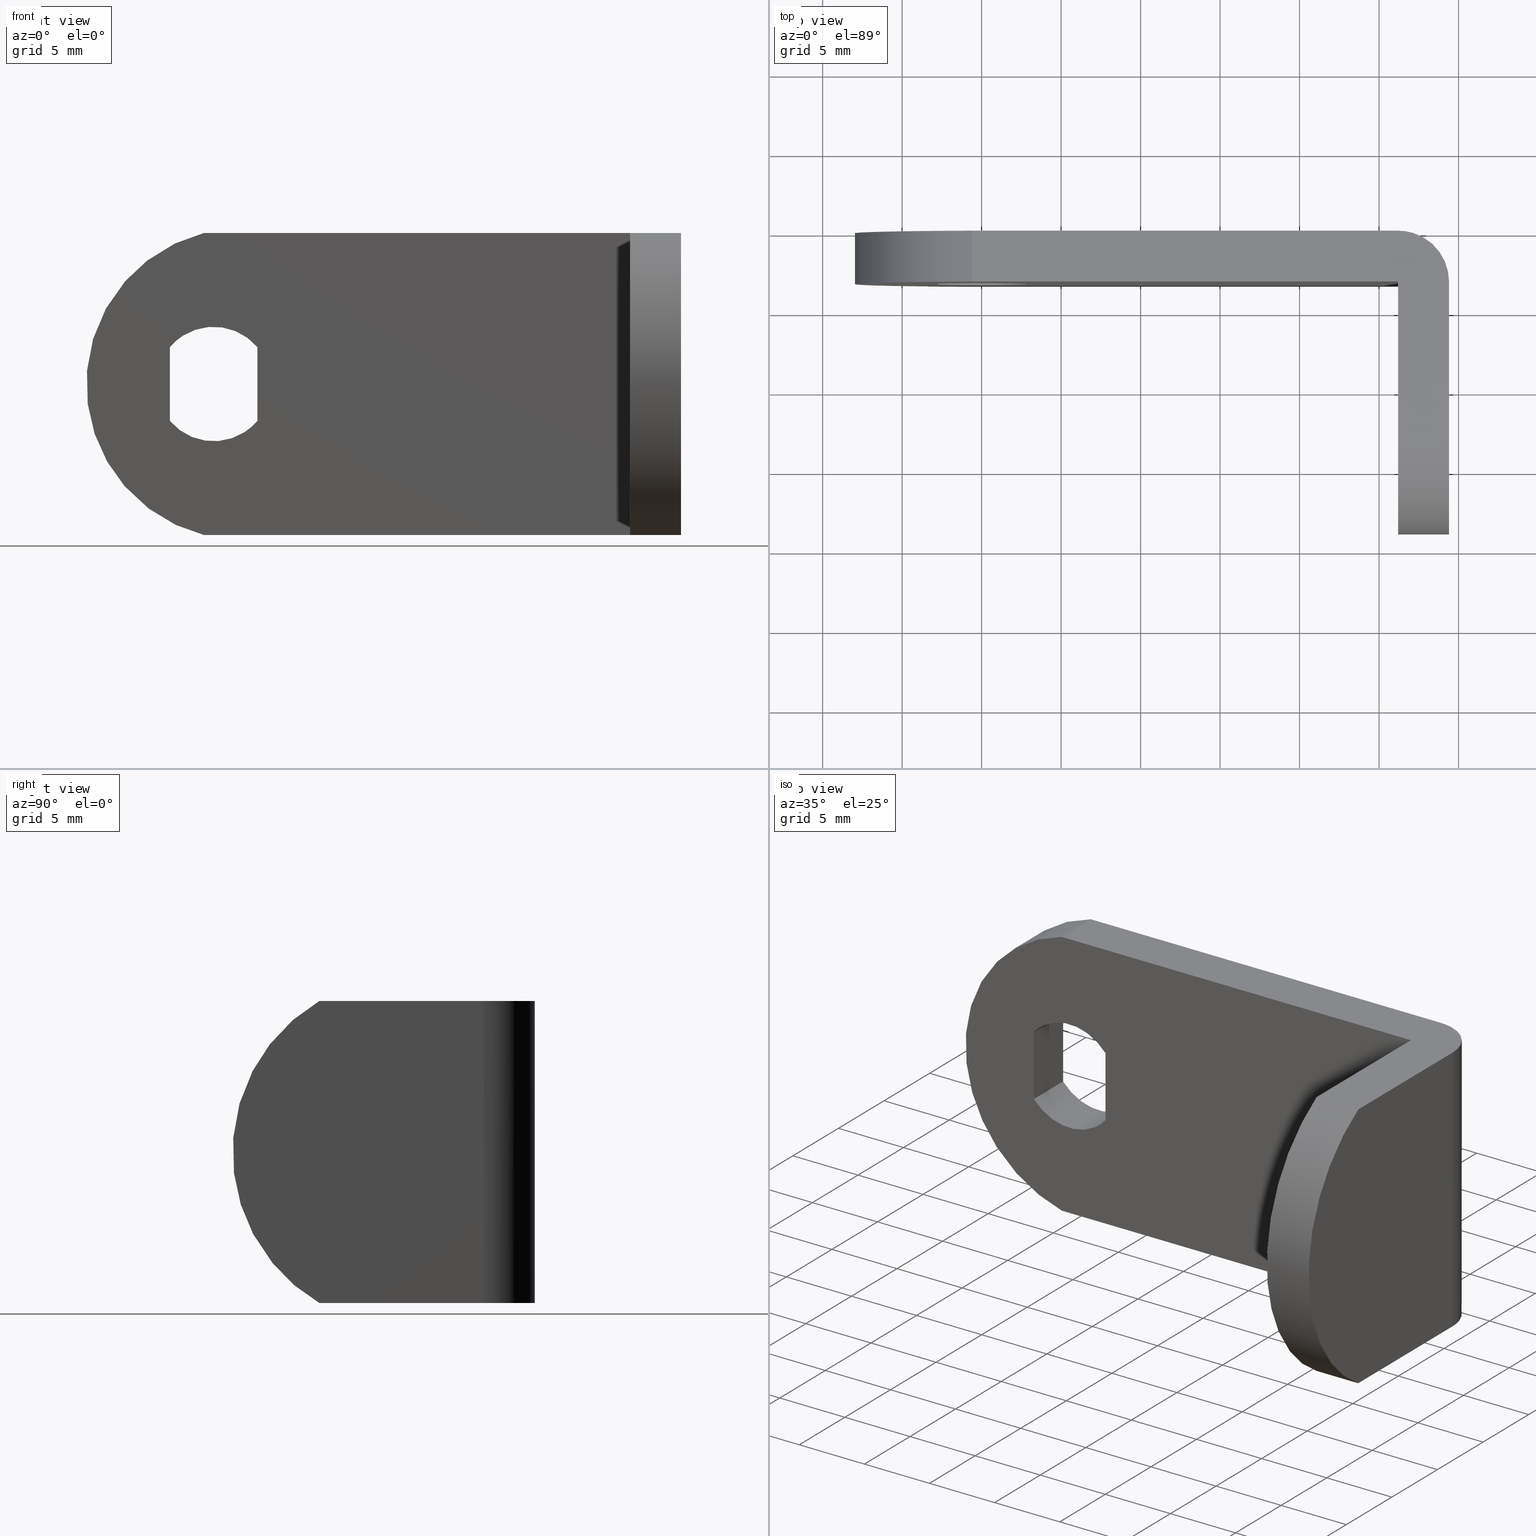
[diagram: canonical four-view strip — front | top / right | iso, engineering-drawing reading convention]
A machine part, canonical four-view strip (front | top / right | iso — engineering-drawing reading convention). The complete STEP part file that produces these views, byte-faithful:
ISO-10303-21;
HEADER;
/****************************************************************
 * Generated by software with PDE/Lib inside                    *
 * PDElib Version 4.4.1-0003, patched  Thursday August 19 11:58 *
 * International Technegroup Inc. (www.iti-oh.com)              *
 ****************************************************************/
FILE_DESCRIPTION((''),'2;1');
FILE_NAME('','2005-07-15T17:37:20',(''),(''),'','CADfix','');
FILE_SCHEMA(('AUTOMOTIVE_DESIGN'));
ENDSEC;
DATA;
#5=APPLICATION_CONTEXT('automotive design');
#6=APPLICATION_PROTOCOL_DEFINITION('Draft International Standard','automotive_design',1998,#5);
#7=PRODUCT_CONTEXT('None',#5,'mechanical');
#8=PRODUCT('cam','','None',(#7));
#9=PRODUCT_RELATED_PRODUCT_CATEGORY('part','description',(#8));
#10=PRODUCT_DEFINITION_FORMATION('None','None',#8);
#11=PRODUCT_DEFINITION_CONTEXT('part definition',#5,'design');
#12=PRODUCT_DEFINITION('None','None',#10,#11);
#18=(NAMED_UNIT(*)PLANE_ANGLE_UNIT()SI_UNIT($,.RADIAN.));
#19=DIMENSIONAL_EXPONENTS(0.0,0.0,0.0,0.0,0.0,0.0,0.0);
#20=PLANE_ANGLE_MEASURE_WITH_UNIT(PLANE_ANGLE_MEASURE(0.017453292500000),#18);
#24=(CONVERSION_BASED_UNIT('DEGREE',#20)NAMED_UNIT(#19)PLANE_ANGLE_UNIT());
#28=(NAMED_UNIT(*)SI_UNIT($,.STERADIAN.)SOLID_ANGLE_UNIT());
#32=(LENGTH_UNIT()NAMED_UNIT(*)SI_UNIT(.MILLI.,.METRE.));
#34=UNCERTAINTY_MEASURE_WITH_UNIT(LENGTH_MEASURE(0.001000000000000),#32,'DISTANCE_ACCURACY_VALUE','');
#36=(GEOMETRIC_REPRESENTATION_CONTEXT(3)GLOBAL_UNCERTAINTY_ASSIGNED_CONTEXT((#34))GLOBAL_UNIT_ASSIGNED_CONTEXT((#24,#28,#32))REPRESENTATION_CONTEXT('None','None'));
#37=AXIS2_PLACEMENT_3D('',#38,#39,#40);
#38=CARTESIAN_POINT('',(0.0,0.0,0.0));
#39=DIRECTION('',(0.0,0.0,1.0));
#40=DIRECTION('',(1.0,0.0,0.0));
#41=ADVANCED_BREP_SHAPE_REPRESENTATION('',(#37,#540),#36);
#42=PRODUCT_DEFINITION_SHAPE('','',#12);
#43=SHAPE_DEFINITION_REPRESENTATION(#42,#41);
#44=CARTESIAN_POINT('',(29.398903439921789,-3.283766234585195,9.975000000000001));
#45=CARTESIAN_POINT('',(29.398903439921789,-3.283766234585195,-9.986875000000000));
#46=CARTESIAN_POINT('',(29.491175215301187,0.239950703755023,9.975000000000001));
#47=CARTESIAN_POINT('',(29.491175215301187,0.239950703755023,-9.986875000000001));
#48=CARTESIAN_POINT('',(25.974976351309930,-0.007921624156109,9.975000000000003));
#49=CARTESIAN_POINT('',(25.974976351309930,-0.007921624156109,-9.986875000000000));
#57=(BOUNDED_SURFACE()B_SPLINE_SURFACE(1,2,((#44,#46,#48),(#45,#47,#49)),.UNSPECIFIED.,.F.,.F.,.U.)B_SPLINE_SURFACE_WITH_KNOTS((2,2),(3,3),(0.0,19.961874999999999),(0.0,5.667654789434264),.UNSPECIFIED.)GEOMETRIC_REPRESENTATION_ITEM()RATIONAL_B_SPLINE_SURFACE(((1.0,0.670944264382934,0.996392567056732),(1.0,0.670944264382934,0.996392567056732)))REPRESENTATION_ITEM('')SURFACE());
#58=CARTESIAN_POINT('',(26.199999999999999,0.0,-9.500000000000000));
#59=VERTEX_POINT('',#58);
#60=CARTESIAN_POINT('',(29.399999999999999,-3.200000000000000,-9.500000000000000));
#61=VERTEX_POINT('',#60);
#62=CARTESIAN_POINT('',(26.199999999999999,0.0,-9.500000000000000));
#63=CARTESIAN_POINT('',(29.399999999999999,-4.336809E-016,-9.500000000000000));
#64=CARTESIAN_POINT('',(29.399999999999999,-3.200000000000000,-9.500000000000000));
#72=(BOUNDED_CURVE()B_SPLINE_CURVE(2,(#62,#63,#64),.UNSPECIFIED.,.F.,.U.)CURVE()GEOMETRIC_REPRESENTATION_ITEM()QUASI_UNIFORM_CURVE()RATIONAL_B_SPLINE_CURVE((1.0,0.707106781186548,1.0))REPRESENTATION_ITEM(''));
#73=EDGE_CURVE('',#59,#61,#72,.T.);
#74=ORIENTED_EDGE('',*,*,#73,.F.);
#75=CARTESIAN_POINT('',(26.199999999999999,0.0,9.500000000000000));
#76=VERTEX_POINT('',#75);
#77=CARTESIAN_POINT('',(26.199999999999999,0.0,9.500000000000000));
#78=CARTESIAN_POINT('',(26.199999999999999,0.0,-9.500000000000000));
#79=QUASI_UNIFORM_CURVE('',1,(#77,#78),.UNSPECIFIED.,.F.,.U.);
#80=EDGE_CURVE('',#76,#59,#79,.T.);
#81=ORIENTED_EDGE('',*,*,#80,.F.);
#82=CARTESIAN_POINT('',(29.399999999999999,-3.200000000000000,9.500000000000000));
#83=VERTEX_POINT('',#82);
#84=CARTESIAN_POINT('',(29.399999999999999,-3.200000000000000,9.500000000000000));
#85=CARTESIAN_POINT('',(29.399999999999999,-4.336809E-016,9.500000000000000));
#86=CARTESIAN_POINT('',(26.199999999999999,0.0,9.500000000000000));
#94=(BOUNDED_CURVE()B_SPLINE_CURVE(2,(#84,#85,#86),.UNSPECIFIED.,.F.,.U.)CURVE()GEOMETRIC_REPRESENTATION_ITEM()QUASI_UNIFORM_CURVE()RATIONAL_B_SPLINE_CURVE((1.0,0.707106781186548,1.0))REPRESENTATION_ITEM(''));
#95=EDGE_CURVE('',#83,#76,#94,.T.);
#96=ORIENTED_EDGE('',*,*,#95,.F.);
#97=CARTESIAN_POINT('',(29.399999999999999,-3.200000000000000,-9.500000000000000));
#98=CARTESIAN_POINT('',(29.399999999999999,-3.200000000000000,9.500000000000000));
#99=QUASI_UNIFORM_CURVE('',1,(#97,#98),.UNSPECIFIED.,.F.,.U.);
#100=EDGE_CURVE('',#61,#83,#99,.T.);
#101=ORIENTED_EDGE('',*,*,#100,.F.);
#102=EDGE_LOOP('',(#74,#81,#96,#101));
#103=FACE_OUTER_BOUND('',#102,.T.);
#104=ADVANCED_FACE('',(#103),#57,.T.);
#105=CARTESIAN_POINT('',(26.199999999999999,-19.789209969376529,-10.449049963174311));
#106=CARTESIAN_POINT('',(26.199999999999999,-2.410789606834442,-10.449049963174311));
#107=CARTESIAN_POINT('',(26.199999999999999,-19.789209969376529,10.449050472794021));
#108=CARTESIAN_POINT('',(26.199999999999999,-2.410789606834442,10.449050472794021));
#109=B_SPLINE_SURFACE_WITH_KNOTS('',1,1,((#105,#107),(#106,#108)),.UNSPECIFIED.,.F.,.F.,.U.,(2,2),(2,2),(0.0,17.378420362542091),(0.0,20.898100435968342),.UNSPECIFIED.);
#110=CARTESIAN_POINT('',(26.199999999999999,-3.200000000000000,-9.500000000000000));
#111=VERTEX_POINT('',#110);
#112=CARTESIAN_POINT('',(26.199999999999999,-3.200000000000000,9.500000000000000));
#113=VERTEX_POINT('',#112);
#114=CARTESIAN_POINT('',(26.199999999999999,-3.200000000000000,-9.500000000000000));
#115=CARTESIAN_POINT('',(26.199999999999999,-3.200000000000000,9.500000000000000));
#116=QUASI_UNIFORM_CURVE('',1,(#114,#115),.UNSPECIFIED.,.F.,.U.);
#117=EDGE_CURVE('',#111,#113,#116,.T.);
#118=ORIENTED_EDGE('',*,*,#117,.F.);
#119=CARTESIAN_POINT('',(26.199999999999999,-13.545268253204620,-9.500000000000000));
#120=VERTEX_POINT('',#119);
#121=CARTESIAN_POINT('',(26.199999999999999,-13.545268253204620,-9.500000000000000));
#122=CARTESIAN_POINT('',(26.199999999999999,-3.200000000000000,-9.500000000000000));
#123=QUASI_UNIFORM_CURVE('',1,(#121,#122),.UNSPECIFIED.,.F.,.U.);
#124=EDGE_CURVE('',#120,#111,#123,.T.);
#125=ORIENTED_EDGE('',*,*,#124,.F.);
#126=CARTESIAN_POINT('',(26.199999999999999,-13.545268253204620,9.500000000000000));
#127=VERTEX_POINT('',#126);
#128=CARTESIAN_POINT('',(26.199999999999999,-13.545268253204640,9.500000000000039));
#129=CARTESIAN_POINT('',(26.200000000000003,-19.0,6.316005180499862));
#130=CARTESIAN_POINT('',(26.199999999999999,-19.0,-4.898425E-016));
#131=CARTESIAN_POINT('',(26.200000000000003,-19.0,-6.316005180499862));
#132=CARTESIAN_POINT('',(26.199999999999999,-13.545268253204640,-9.500000000000037));
#140=(BOUNDED_CURVE()B_SPLINE_CURVE(2,(#128,#129,#130,#131,#132),.UNSPECIFIED.,.F.,.U.)B_SPLINE_CURVE_WITH_KNOTS((3,2,3),(0.0,0.500000000000000,1.0),.UNSPECIFIED.)CURVE()GEOMETRIC_REPRESENTATION_ITEM()RATIONAL_B_SPLINE_CURVE((1.0,0.867212573636325,1.0,0.867212573636325,1.0))REPRESENTATION_ITEM(''));
#141=EDGE_CURVE('',#127,#120,#140,.T.);
#142=ORIENTED_EDGE('',*,*,#141,.F.);
#143=CARTESIAN_POINT('',(26.199999999999999,-3.200000000000000,9.500000000000000));
#144=CARTESIAN_POINT('',(26.199999999999999,-13.545268253204620,9.500000000000000));
#145=QUASI_UNIFORM_CURVE('',1,(#143,#144),.UNSPECIFIED.,.F.,.U.);
#146=EDGE_CURVE('',#113,#127,#145,.T.);
#147=ORIENTED_EDGE('',*,*,#146,.F.);
#148=EDGE_LOOP('',(#118,#125,#142,#147));
#149=FACE_OUTER_BOUND('',#148,.T.);
#150=ADVANCED_FACE('',(#149),#109,.F.);
#151=CARTESIAN_POINT('',(29.480000000000000,-13.202686858099559,9.691854799601472));
#152=CARTESIAN_POINT('',(26.117999999999999,-13.202686858099559,9.691854799601472));
#153=CARTESIAN_POINT('',(29.480000000000000,-32.224022905627912,-0.518993084958304));
#154=CARTESIAN_POINT('',(26.117999999999991,-32.224022905627912,-0.518993084958304));
#155=CARTESIAN_POINT('',(29.480000000000000,-12.782812632405211,-9.905791403179510));
#156=CARTESIAN_POINT('',(26.117999999999999,-12.782812632405211,-9.905791403179510));
#164=(BOUNDED_SURFACE()B_SPLINE_SURFACE(1,2,((#151,#153,#155),(#152,#154,#156)),.UNSPECIFIED.,.F.,.F.,.U.)B_SPLINE_SURFACE_WITH_KNOTS((2,2),(3,3),(0.0,3.362000000000008),(0.0,26.963234678157001),.UNSPECIFIED.)GEOMETRIC_REPRESENTATION_ITEM()RATIONAL_B_SPLINE_SURFACE(((1.0,0.453990499739547,1.0),(1.0,0.453990499739547,1.0)))REPRESENTATION_ITEM('')SURFACE());
#165=ORIENTED_EDGE('',*,*,#141,.T.);
#166=CARTESIAN_POINT('',(29.399999999999999,-13.545268253204620,-9.500000000000000));
#167=VERTEX_POINT('',#166);
#168=CARTESIAN_POINT('',(29.399999999999999,-13.545268253204620,-9.500000000000000));
#169=CARTESIAN_POINT('',(26.199999999999999,-13.545268253204620,-9.500000000000000));
#170=QUASI_UNIFORM_CURVE('',1,(#168,#169),.UNSPECIFIED.,.F.,.U.);
#171=EDGE_CURVE('',#167,#120,#170,.T.);
#172=ORIENTED_EDGE('',*,*,#171,.F.);
#173=CARTESIAN_POINT('',(29.399999999999999,-13.545268253204620,9.500000000000000));
#174=VERTEX_POINT('',#173);
#175=CARTESIAN_POINT('',(29.399999999999999,-13.545268253204640,9.500000000000039));
#176=CARTESIAN_POINT('',(29.400000000000002,-19.0,6.316005180499862));
#177=CARTESIAN_POINT('',(29.399999999999999,-19.0,-4.898425E-016));
#178=CARTESIAN_POINT('',(29.400000000000002,-19.0,-6.316005180499862));
#179=CARTESIAN_POINT('',(29.399999999999999,-13.545268253204640,-9.500000000000037));
#187=(BOUNDED_CURVE()B_SPLINE_CURVE(2,(#175,#176,#177,#178,#179),.UNSPECIFIED.,.F.,.U.)B_SPLINE_CURVE_WITH_KNOTS((3,2,3),(0.0,0.500000000000000,1.0),.UNSPECIFIED.)CURVE()GEOMETRIC_REPRESENTATION_ITEM()RATIONAL_B_SPLINE_CURVE((1.0,0.867212573636325,1.0,0.867212573636325,1.0))REPRESENTATION_ITEM(''));
#188=EDGE_CURVE('',#174,#167,#187,.T.);
#189=ORIENTED_EDGE('',*,*,#188,.F.);
#190=CARTESIAN_POINT('',(29.399999999999999,-13.545268253204620,9.500000000000000));
#191=CARTESIAN_POINT('',(26.199999999999999,-13.545268253204620,9.500000000000000));
#192=QUASI_UNIFORM_CURVE('',1,(#190,#191),.UNSPECIFIED.,.F.,.U.);
#193=EDGE_CURVE('',#174,#127,#192,.T.);
#194=ORIENTED_EDGE('',*,*,#193,.T.);
#195=EDGE_LOOP('',(#165,#172,#189,#194));
#196=FACE_OUTER_BOUND('',#195,.T.);
#197=ADVANCED_FACE('',(#196),#164,.T.);
#198=CARTESIAN_POINT('',(-9.708289933713765,0.0,10.449049963174311));
#199=CARTESIAN_POINT('',(27.908290851029260,0.0,10.449049963174311));
#200=CARTESIAN_POINT('',(-9.708289933713765,0.0,-10.449050472794021));
#201=CARTESIAN_POINT('',(27.908290851029260,0.0,-10.449050472794021));
#202=B_SPLINE_SURFACE_WITH_KNOTS('',1,1,((#198,#200),(#199,#201)),.UNSPECIFIED.,.F.,.F.,.U.,(2,2),(2,2),(0.0,37.616580784743029),(0.0,20.898100435968342),.UNSPECIFIED.);
#203=CARTESIAN_POINT('',(-0.606241883103202,0.0,9.500000000000000));
#204=VERTEX_POINT('',#203);
#205=CARTESIAN_POINT('',(26.199999999999999,0.0,9.500000000000000));
#206=CARTESIAN_POINT('',(-0.606241883103202,0.0,9.500000000000000));
#207=QUASI_UNIFORM_CURVE('',1,(#205,#206),.UNSPECIFIED.,.F.,.U.);
#208=EDGE_CURVE('',#76,#204,#207,.T.);
#209=ORIENTED_EDGE('',*,*,#208,.F.);
#210=ORIENTED_EDGE('',*,*,#80,.T.);
#211=CARTESIAN_POINT('',(-0.606241883103202,0.0,-9.500000000000000));
#212=VERTEX_POINT('',#211);
#213=CARTESIAN_POINT('',(-0.606241883103202,0.0,-9.500000000000000));
#214=CARTESIAN_POINT('',(26.199999999999999,0.0,-9.500000000000000));
#215=QUASI_UNIFORM_CURVE('',1,(#213,#214),.UNSPECIFIED.,.F.,.U.);
#216=EDGE_CURVE('',#212,#59,#215,.T.);
#217=ORIENTED_EDGE('',*,*,#216,.F.);
#218=CARTESIAN_POINT('',(-0.606241883103202,0.0,9.499999999999998));
#219=CARTESIAN_POINT('',(-8.000000000000002,0.0,7.627245215325119));
#220=CARTESIAN_POINT('',(-8.0,0.0,0.0));
#221=CARTESIAN_POINT('',(-8.000000000000002,0.0,-7.627245215325119));
#222=CARTESIAN_POINT('',(-0.606241883103204,0.0,-9.499999999999998));
#230=(BOUNDED_CURVE()B_SPLINE_CURVE(2,(#218,#219,#220,#221,#222),.UNSPECIFIED.,.F.,.U.)B_SPLINE_CURVE_WITH_KNOTS((3,2,3),(0.0,0.500000000000000,1.0),.UNSPECIFIED.)CURVE()GEOMETRIC_REPRESENTATION_ITEM()RATIONAL_B_SPLINE_CURVE((1.0,0.789156158827560,1.0,0.789156158827560,1.0))REPRESENTATION_ITEM(''));
#231=EDGE_CURVE('',#204,#212,#230,.T.);
#232=ORIENTED_EDGE('',*,*,#231,.F.);
#233=EDGE_LOOP('',(#209,#210,#217,#232));
#234=FACE_OUTER_BOUND('',#233,.T.);
#235=CARTESIAN_POINT('',(2.750000000000000,0.0,2.323252031097790));
#236=VERTEX_POINT('',#235);
#237=CARTESIAN_POINT('',(-2.750000000000000,0.0,2.323252031097770));
#238=VERTEX_POINT('',#237);
#239=CARTESIAN_POINT('',(2.749999999999999,0.0,2.323252031097790));
#240=CARTESIAN_POINT('',(1.671379159290166,0.0,3.600000000000001));
#241=CARTESIAN_POINT('',(0.0,0.0,3.600000000000000));
#242=CARTESIAN_POINT('',(-1.671379159290175,0.0,3.600000000000001));
#243=CARTESIAN_POINT('',(-2.750000000000000,0.0,2.323252031097770));
#251=(BOUNDED_CURVE()B_SPLINE_CURVE(2,(#239,#240,#241,#242,#243),.UNSPECIFIED.,.F.,.U.)B_SPLINE_CURVE_WITH_KNOTS((3,2,3),(0.0,0.500000000000000,1.0),.UNSPECIFIED.)CURVE()GEOMETRIC_REPRESENTATION_ITEM()RATIONAL_B_SPLINE_CURVE((1.0,0.907013722723105,1.0,0.907013722723105,1.0))REPRESENTATION_ITEM(''));
#252=EDGE_CURVE('',#236,#238,#251,.T.);
#253=ORIENTED_EDGE('',*,*,#252,.T.);
#254=CARTESIAN_POINT('',(-2.750000000000000,0.0,-2.323252031097770));
#255=VERTEX_POINT('',#254);
#256=CARTESIAN_POINT('',(-2.750000000000000,0.0,2.323252031097770));
#257=CARTESIAN_POINT('',(-2.750000000000000,0.0,-2.323252031097770));
#258=QUASI_UNIFORM_CURVE('',1,(#256,#257),.UNSPECIFIED.,.F.,.U.);
#259=EDGE_CURVE('',#238,#255,#258,.T.);
#260=ORIENTED_EDGE('',*,*,#259,.T.);
#261=CARTESIAN_POINT('',(2.750000000000000,0.0,-2.323252031097790));
#262=VERTEX_POINT('',#261);
#263=CARTESIAN_POINT('',(-2.750000000000000,0.0,-2.323252031097770));
#264=CARTESIAN_POINT('',(-1.671379159290176,0.0,-3.600000000000001));
#265=CARTESIAN_POINT('',(0.0,0.0,-3.600000000000000));
#266=CARTESIAN_POINT('',(1.671379159290166,0.0,-3.600000000000001));
#267=CARTESIAN_POINT('',(2.749999999999998,0.0,-2.323252031097791));
#275=(BOUNDED_CURVE()B_SPLINE_CURVE(2,(#263,#264,#265,#266,#267),.UNSPECIFIED.,.F.,.U.)B_SPLINE_CURVE_WITH_KNOTS((3,2,3),(0.0,0.500000000000000,1.0),.UNSPECIFIED.)CURVE()GEOMETRIC_REPRESENTATION_ITEM()RATIONAL_B_SPLINE_CURVE((1.0,0.907013722723104,1.0,0.907013722723104,1.0))REPRESENTATION_ITEM(''));
#276=EDGE_CURVE('',#255,#262,#275,.T.);
#277=ORIENTED_EDGE('',*,*,#276,.T.);
#278=CARTESIAN_POINT('',(2.750000000000000,0.0,-2.323252031097790));
#279=CARTESIAN_POINT('',(2.750000000000000,0.0,2.323252031097790));
#280=QUASI_UNIFORM_CURVE('',1,(#278,#279),.UNSPECIFIED.,.F.,.U.);
#281=EDGE_CURVE('',#262,#236,#280,.T.);
#282=ORIENTED_EDGE('',*,*,#281,.T.);
#283=EDGE_LOOP('',(#253,#260,#277,#282));
#284=FACE_BOUND('',#283,.T.);
#285=ADVANCED_FACE('',(#234,#284),#202,.T.);
#286=CARTESIAN_POINT('',(30.898811442225959,-14.221854249045551,9.500000000000000));
#287=CARTESIAN_POINT('',(-2.105054398435987,-14.221854249045551,9.500000000000000));
#288=CARTESIAN_POINT('',(30.898811442225959,0.676586480257465,9.500000000000000));
#289=CARTESIAN_POINT('',(-2.105054398435987,0.676586480257465,9.500000000000000));
#290=B_SPLINE_SURFACE_WITH_KNOTS('',1,1,((#286,#288),(#287,#289)),.UNSPECIFIED.,.F.,.F.,.U.,(2,2),(2,2),(0.0,33.003865840661952),(0.0,14.898440729303021),.UNSPECIFIED.);
#291=CARTESIAN_POINT('',(29.399999999999999,-13.545268253204620,9.500000000000000));
#292=CARTESIAN_POINT('',(29.399999999999999,-3.200000000000000,9.500000000000000));
#293=QUASI_UNIFORM_CURVE('',1,(#291,#292),.UNSPECIFIED.,.F.,.U.);
#294=EDGE_CURVE('',#174,#83,#293,.T.);
#295=ORIENTED_EDGE('',*,*,#294,.T.);
#296=ORIENTED_EDGE('',*,*,#95,.T.);
#297=ORIENTED_EDGE('',*,*,#208,.T.);
#298=CARTESIAN_POINT('',(-0.606241883103202,-3.200000000000000,9.500000000000000));
#299=VERTEX_POINT('',#298);
#300=CARTESIAN_POINT('',(-0.606241883103202,-3.200000000000000,9.500000000000000));
#301=CARTESIAN_POINT('',(-0.606241883103202,0.0,9.500000000000000));
#302=QUASI_UNIFORM_CURVE('',1,(#300,#301),.UNSPECIFIED.,.F.,.U.);
#303=EDGE_CURVE('',#299,#204,#302,.T.);
#304=ORIENTED_EDGE('',*,*,#303,.F.);
#305=CARTESIAN_POINT('',(26.199999999999999,-3.200000000000000,9.500000000000000));
#306=CARTESIAN_POINT('',(-0.606241883103202,-3.200000000000000,9.500000000000000));
#307=QUASI_UNIFORM_CURVE('',1,(#305,#306),.UNSPECIFIED.,.F.,.U.);
#308=EDGE_CURVE('',#113,#299,#307,.T.);
#309=ORIENTED_EDGE('',*,*,#308,.F.);
#310=ORIENTED_EDGE('',*,*,#146,.T.);
#311=ORIENTED_EDGE('',*,*,#193,.F.);
#312=EDGE_LOOP('',(#295,#296,#297,#304,#309,#310,#311));
#313=FACE_OUTER_BOUND('',#312,.T.);
#314=ADVANCED_FACE('',(#313),#290,.F.);
#315=CARTESIAN_POINT('',(-2.750000000000000,-3.359840053876400,2.555344839779979));
#316=CARTESIAN_POINT('',(-2.750000000000000,-3.359840053876400,-2.555344673608044));
#317=CARTESIAN_POINT('',(-2.750000000000000,0.159840082486630,2.555344839779979));
#318=CARTESIAN_POINT('',(-2.750000000000000,0.159840082486630,-2.555344673608044));
#319=B_SPLINE_SURFACE_WITH_KNOTS('',1,1,((#315,#317),(#316,#318)),.UNSPECIFIED.,.F.,.F.,.U.,(2,2),(2,2),(0.0,5.110689513388023),(0.0,3.519680136363030),.UNSPECIFIED.);
#320=ORIENTED_EDGE('',*,*,#259,.F.);
#321=CARTESIAN_POINT('',(-2.750000000000000,-3.200000000000000,2.323252031097770));
#322=VERTEX_POINT('',#321);
#323=CARTESIAN_POINT('',(-2.750000000000000,-3.200000000000000,2.323252031097770));
#324=CARTESIAN_POINT('',(-2.750000000000000,0.0,2.323252031097770));
#325=QUASI_UNIFORM_CURVE('',1,(#323,#324),.UNSPECIFIED.,.F.,.U.);
#326=EDGE_CURVE('',#322,#238,#325,.T.);
#327=ORIENTED_EDGE('',*,*,#326,.F.);
#328=CARTESIAN_POINT('',(-2.750000000000000,-3.200000000000000,-2.323252031097770));
#329=VERTEX_POINT('',#328);
#330=CARTESIAN_POINT('',(-2.750000000000000,-3.200000000000000,2.323252031097770));
#331=CARTESIAN_POINT('',(-2.750000000000000,-3.200000000000000,-2.323252031097770));
#332=QUASI_UNIFORM_CURVE('',1,(#330,#331),.UNSPECIFIED.,.F.,.U.);
#333=EDGE_CURVE('',#322,#329,#332,.T.);
#334=ORIENTED_EDGE('',*,*,#333,.T.);
#335=CARTESIAN_POINT('',(-2.750000000000000,-3.200000000000000,-2.323252031097770));
#336=CARTESIAN_POINT('',(-2.750000000000000,0.0,-2.323252031097770));
#337=QUASI_UNIFORM_CURVE('',1,(#335,#336),.UNSPECIFIED.,.F.,.U.);
#338=EDGE_CURVE('',#329,#255,#337,.T.);
#339=ORIENTED_EDGE('',*,*,#338,.T.);
#340=EDGE_LOOP('',(#320,#327,#334,#339));
#341=FACE_OUTER_BOUND('',#340,.T.);
#342=ADVANCED_FACE('',(#341),#319,.T.);
#343=CARTESIAN_POINT('',(-2.770169229747522,-3.280000000000001,-2.299165596158749));
#344=CARTESIAN_POINT('',(-2.770169229747522,0.082000000000000,-2.299165596158749));
#345=CARTESIAN_POINT('',(0.120278068370740,-3.280000000000002,-5.781745615114988));
#346=CARTESIAN_POINT('',(0.120278068370740,0.082000000000000,-5.781745615114988));
#347=CARTESIAN_POINT('',(2.863390619823820,-3.280000000000001,-2.181970246888109));
#348=CARTESIAN_POINT('',(2.863390619823820,0.082000000000000,-2.181970246888109));
#356=(BOUNDED_SURFACE()B_SPLINE_SURFACE(1,2,((#343,#345,#347),(#344,#346,#348)),.UNSPECIFIED.,.F.,.F.,.U.)B_SPLINE_SURFACE_WITH_KNOTS((2,2),(3,3),(0.0,3.362000000000001),(0.0,6.945735467773011),.UNSPECIFIED.)GEOMETRIC_REPRESENTATION_ITEM()RATIONAL_B_SPLINE_SURFACE(((1.0,0.622514636637620,1.0),(1.0,0.622514636637620,1.0)))REPRESENTATION_ITEM('')SURFACE());
#357=ORIENTED_EDGE('',*,*,#276,.F.);
#358=ORIENTED_EDGE('',*,*,#338,.F.);
#359=CARTESIAN_POINT('',(2.750000000000000,-3.200000000000000,-2.323252031097790));
#360=VERTEX_POINT('',#359);
#361=CARTESIAN_POINT('',(-2.750000000000009,-3.200000000000000,-2.323252031097778));
#362=CARTESIAN_POINT('',(-1.671379159290176,-3.200000000000000,-3.600000000000001));
#363=CARTESIAN_POINT('',(0.0,-3.200000000000000,-3.600000000000000));
#364=CARTESIAN_POINT('',(1.671379159290166,-3.200000000000000,-3.600000000000001));
#365=CARTESIAN_POINT('',(2.749999999999998,-3.200000000000000,-2.323252031097791));
#373=(BOUNDED_CURVE()B_SPLINE_CURVE(2,(#361,#362,#363,#364,#365),.UNSPECIFIED.,.F.,.U.)B_SPLINE_CURVE_WITH_KNOTS((3,2,3),(0.0,0.500000000000000,1.0),.UNSPECIFIED.)CURVE()GEOMETRIC_REPRESENTATION_ITEM()RATIONAL_B_SPLINE_CURVE((1.0,0.907013722723104,1.0,0.907013722723104,1.0))REPRESENTATION_ITEM(''));
#374=EDGE_CURVE('',#329,#360,#373,.T.);
#375=ORIENTED_EDGE('',*,*,#374,.T.);
#376=CARTESIAN_POINT('',(2.750000000000000,-3.200000000000000,-2.323252031097790));
#377=CARTESIAN_POINT('',(2.750000000000000,0.0,-2.323252031097790));
#378=QUASI_UNIFORM_CURVE('',1,(#376,#377),.UNSPECIFIED.,.F.,.U.);
#379=EDGE_CURVE('',#360,#262,#378,.T.);
#380=ORIENTED_EDGE('',*,*,#379,.T.);
#381=EDGE_LOOP('',(#357,#358,#375,#380));
#382=FACE_OUTER_BOUND('',#381,.T.);
#383=ADVANCED_FACE('',(#382),#356,.F.);
#384=CARTESIAN_POINT('',(2.750000000000000,-3.359840053876401,-2.555344839780001));
#385=CARTESIAN_POINT('',(2.750000000000000,-3.359840053876401,2.555344673608066));
#386=CARTESIAN_POINT('',(2.750000000000000,0.159840082486629,-2.555344839780001));
#387=CARTESIAN_POINT('',(2.750000000000000,0.159840082486629,2.555344673608066));
#388=B_SPLINE_SURFACE_WITH_KNOTS('',1,1,((#384,#386),(#385,#387)),.UNSPECIFIED.,.F.,.F.,.U.,(2,2),(2,2),(0.0,5.110689513388067),(0.0,3.519680136363030),.UNSPECIFIED.);
#389=ORIENTED_EDGE('',*,*,#281,.F.);
#390=ORIENTED_EDGE('',*,*,#379,.F.);
#391=CARTESIAN_POINT('',(2.750000000000000,-3.200000000000000,2.323252031097790));
#392=VERTEX_POINT('',#391);
#393=CARTESIAN_POINT('',(2.750000000000000,-3.200000000000000,-2.323252031097790));
#394=CARTESIAN_POINT('',(2.750000000000000,-3.200000000000000,2.323252031097790));
#395=QUASI_UNIFORM_CURVE('',1,(#393,#394),.UNSPECIFIED.,.F.,.U.);
#396=EDGE_CURVE('',#360,#392,#395,.T.);
#397=ORIENTED_EDGE('',*,*,#396,.T.);
#398=CARTESIAN_POINT('',(2.750000000000000,-3.200000000000000,2.323252031097790));
#399=CARTESIAN_POINT('',(2.750000000000000,0.0,2.323252031097790));
#400=QUASI_UNIFORM_CURVE('',1,(#398,#399),.UNSPECIFIED.,.F.,.U.);
#401=EDGE_CURVE('',#392,#236,#400,.T.);
#402=ORIENTED_EDGE('',*,*,#401,.T.);
#403=EDGE_LOOP('',(#389,#390,#397,#402));
#404=FACE_OUTER_BOUND('',#403,.T.);
#405=ADVANCED_FACE('',(#404),#388,.T.);
#406=CARTESIAN_POINT('',(2.809873292006992,-3.280000000000001,2.250469302804591));
#407=CARTESIAN_POINT('',(2.809873292006992,0.082000000000000,2.250469302804591));
#408=CARTESIAN_POINT('',(-0.070596060625135,-3.280000000000001,5.846943110431760));
#409=CARTESIAN_POINT('',(-0.070596060625135,0.082000000000000,5.846943110431760));
#410=CARTESIAN_POINT('',(-2.863390619823826,-3.280000000000001,2.181970246888101));
#411=CARTESIAN_POINT('',(-2.863390619823826,0.082000000000000,2.181970246888101));
#419=(BOUNDED_SURFACE()B_SPLINE_SURFACE(1,2,((#406,#408,#410),(#407,#409,#411)),.UNSPECIFIED.,.F.,.F.,.U.)B_SPLINE_SURFACE_WITH_KNOTS((2,2),(3,3),(0.0,3.362000000000001),(0.0,7.023349275348402),.UNSPECIFIED.)GEOMETRIC_REPRESENTATION_ITEM()RATIONAL_B_SPLINE_SURFACE(((1.0,0.615661475325658,1.0),(1.0,0.615661475325658,1.0)))REPRESENTATION_ITEM('')SURFACE());
#420=ORIENTED_EDGE('',*,*,#252,.F.);
#421=ORIENTED_EDGE('',*,*,#401,.F.);
#422=CARTESIAN_POINT('',(2.749999999999999,-3.200000000000000,2.323252031097790));
#423=CARTESIAN_POINT('',(1.671379159290166,-3.200000000000001,3.600000000000001));
#424=CARTESIAN_POINT('',(0.0,-3.200000000000000,3.600000000000000));
#425=CARTESIAN_POINT('',(-1.671379159290175,-3.200000000000001,3.600000000000001));
#426=CARTESIAN_POINT('',(-2.750000000000008,-3.200000000000000,2.323252031097779));
#434=(BOUNDED_CURVE()B_SPLINE_CURVE(2,(#422,#423,#424,#425,#426),.UNSPECIFIED.,.F.,.U.)B_SPLINE_CURVE_WITH_KNOTS((3,2,3),(0.0,0.500000000000000,1.0),.UNSPECIFIED.)CURVE()GEOMETRIC_REPRESENTATION_ITEM()RATIONAL_B_SPLINE_CURVE((1.0,0.907013722723105,1.0,0.907013722723105,1.0))REPRESENTATION_ITEM(''));
#435=EDGE_CURVE('',#392,#322,#434,.T.);
#436=ORIENTED_EDGE('',*,*,#435,.T.);
#437=ORIENTED_EDGE('',*,*,#326,.T.);
#438=EDGE_LOOP('',(#420,#421,#436,#437));
#439=FACE_OUTER_BOUND('',#438,.T.);
#440=ADVANCED_FACE('',(#439),#419,.F.);
#441=CARTESIAN_POINT('',(29.399999999999999,-19.789209969376529,-10.449049963174311));
#442=CARTESIAN_POINT('',(29.399999999999999,-19.789209969376529,10.449050472794029));
#443=CARTESIAN_POINT('',(29.399999999999999,-2.410789606834440,-10.449049963174311));
#444=CARTESIAN_POINT('',(29.399999999999999,-2.410789606834440,10.449050472794029));
#445=B_SPLINE_SURFACE_WITH_KNOTS('',1,1,((#441,#443),(#442,#444)),.UNSPECIFIED.,.F.,.F.,.U.,(2,2),(2,2),(0.0,20.898100435968342),(0.0,17.378420362542091),.UNSPECIFIED.);
#446=CARTESIAN_POINT('',(29.399999999999999,-13.545268253204620,-9.500000000000000));
#447=CARTESIAN_POINT('',(29.399999999999999,-3.200000000000000,-9.500000000000000));
#448=QUASI_UNIFORM_CURVE('',1,(#446,#447),.UNSPECIFIED.,.F.,.U.);
#449=EDGE_CURVE('',#167,#61,#448,.T.);
#450=ORIENTED_EDGE('',*,*,#449,.T.);
#451=ORIENTED_EDGE('',*,*,#100,.T.);
#452=ORIENTED_EDGE('',*,*,#294,.F.);
#453=ORIENTED_EDGE('',*,*,#188,.T.);
#454=EDGE_LOOP('',(#450,#451,#452,#453));
#455=FACE_OUTER_BOUND('',#454,.T.);
#456=ADVANCED_FACE('',(#455),#445,.F.);
#457=CARTESIAN_POINT('',(-2.105053499802915,-14.221854249045551,-9.500000000000000));
#458=CARTESIAN_POINT('',(30.898810275316169,-14.221854249045551,-9.500000000000000));
#459=CARTESIAN_POINT('',(-2.105053499802915,0.676586480257465,-9.500000000000000));
#460=CARTESIAN_POINT('',(30.898810275316169,0.676586480257465,-9.500000000000000));
#461=B_SPLINE_SURFACE_WITH_KNOTS('',1,1,((#457,#459),(#458,#460)),.UNSPECIFIED.,.F.,.F.,.U.,(2,2),(2,2),(0.0,33.003863775119093),(0.0,14.898440729303021),.UNSPECIFIED.);
#462=ORIENTED_EDGE('',*,*,#216,.T.);
#463=ORIENTED_EDGE('',*,*,#73,.T.);
#464=ORIENTED_EDGE('',*,*,#449,.F.);
#465=ORIENTED_EDGE('',*,*,#171,.T.);
#466=ORIENTED_EDGE('',*,*,#124,.T.);
#467=CARTESIAN_POINT('',(-0.606241883103202,-3.200000000000000,-9.500000000000000));
#468=VERTEX_POINT('',#467);
#469=CARTESIAN_POINT('',(-0.606241883103202,-3.200000000000000,-9.500000000000000));
#470=CARTESIAN_POINT('',(26.199999999999999,-3.200000000000000,-9.500000000000000));
#471=QUASI_UNIFORM_CURVE('',1,(#469,#470),.UNSPECIFIED.,.F.,.U.);
#472=EDGE_CURVE('',#468,#111,#471,.T.);
#473=ORIENTED_EDGE('',*,*,#472,.F.);
#474=CARTESIAN_POINT('',(-0.606241883103202,-3.200000000000000,-9.500000000000000));
#475=CARTESIAN_POINT('',(-0.606241883103202,0.0,-9.500000000000000));
#476=QUASI_UNIFORM_CURVE('',1,(#474,#475),.UNSPECIFIED.,.F.,.U.);
#477=EDGE_CURVE('',#468,#212,#476,.T.);
#478=ORIENTED_EDGE('',*,*,#477,.T.);
#479=EDGE_LOOP('',(#462,#463,#464,#465,#466,#473,#478));
#480=FACE_OUTER_BOUND('',#479,.T.);
#481=ADVANCED_FACE('',(#480),#461,.F.);
#482=CARTESIAN_POINT('',(-0.189567494039354,-3.280000000000001,9.595916901821415));
#483=CARTESIAN_POINT('',(-0.189567494039354,0.082000000000000,9.595916901821415));
#484=CARTESIAN_POINT('',(-8.029760453802494,-3.280000000000001,7.970372076940726));
#485=CARTESIAN_POINT('',(-8.029760453802494,0.082000000000000,7.970372076940726));
#486=CARTESIAN_POINT('',(-7.999931997253601,-3.280000000000001,-0.036508207364507));
#487=CARTESIAN_POINT('',(-7.999931997253601,0.082000000000000,-0.036508207364507));
#488=CARTESIAN_POINT('',(-7.970103540704707,-3.280000000000001,-8.043388491669738));
#489=CARTESIAN_POINT('',(-7.970103540704707,0.082000000000000,-8.043388491669738));
#490=CARTESIAN_POINT('',(-0.118016905403553,-3.280000000000001,-9.610474033604486));
#491=CARTESIAN_POINT('',(-0.118016905403553,0.082000000000000,-9.610474033604486));
#499=(BOUNDED_SURFACE()B_SPLINE_SURFACE(1,2,((#482,#484,#486,#488,#490),(#483,#485,#487,#489,#491)),.UNSPECIFIED.,.F.,.F.,.U.)B_SPLINE_SURFACE_WITH_KNOTS((2,2),(3,2,3),(0.0,3.362000000000001),(0.0,13.977768090038269,27.955536180076539),.UNSPECIFIED.)GEOMETRIC_REPRESENTATION_ITEM()RATIONAL_B_SPLINE_SURFACE(((1.0,0.774392644082186,1.0,0.774392644082186,1.0),(1.0,0.774392644082186,1.0,0.774392644082186,1.0)))REPRESENTATION_ITEM('')SURFACE());
#500=ORIENTED_EDGE('',*,*,#231,.T.);
#501=ORIENTED_EDGE('',*,*,#477,.F.);
#502=CARTESIAN_POINT('',(-0.606241883103202,-3.200000000000000,9.499999999999998));
#503=CARTESIAN_POINT('',(-8.000000000000002,-3.200000000000001,7.627245215325119));
#504=CARTESIAN_POINT('',(-8.0,-3.200000000000000,0.0));
#505=CARTESIAN_POINT('',(-8.000000000000002,-3.200000000000001,-7.627245215325119));
#506=CARTESIAN_POINT('',(-0.606241883103204,-3.200000000000000,-9.499999999999998));
#514=(BOUNDED_CURVE()B_SPLINE_CURVE(2,(#502,#503,#504,#505,#506),.UNSPECIFIED.,.F.,.U.)B_SPLINE_CURVE_WITH_KNOTS((3,2,3),(0.0,0.500000000000000,1.0),.UNSPECIFIED.)CURVE()GEOMETRIC_REPRESENTATION_ITEM()RATIONAL_B_SPLINE_CURVE((1.0,0.789156158827560,1.0,0.789156158827560,1.0))REPRESENTATION_ITEM(''));
#515=EDGE_CURVE('',#299,#468,#514,.T.);
#516=ORIENTED_EDGE('',*,*,#515,.F.);
#517=ORIENTED_EDGE('',*,*,#303,.T.);
#518=EDGE_LOOP('',(#500,#501,#516,#517));
#519=FACE_OUTER_BOUND('',#518,.T.);
#520=ADVANCED_FACE('',(#519),#499,.T.);
#521=CARTESIAN_POINT('',(-9.708289933713765,-3.200000000000000,10.449049963174311));
#522=CARTESIAN_POINT('',(27.908290851029260,-3.200000000000000,10.449049963174311));
#523=CARTESIAN_POINT('',(-9.708289933713765,-3.200000000000000,-10.449050472794021));
#524=CARTESIAN_POINT('',(27.908290851029260,-3.200000000000000,-10.449050472794021));
#525=B_SPLINE_SURFACE_WITH_KNOTS('',1,1,((#521,#523),(#522,#524)),.UNSPECIFIED.,.F.,.F.,.U.,(2,2),(2,2),(0.0,37.616580784743029),(0.0,20.898100435968342),.UNSPECIFIED.);
#526=ORIENTED_EDGE('',*,*,#472,.T.);
#527=ORIENTED_EDGE('',*,*,#117,.T.);
#528=ORIENTED_EDGE('',*,*,#308,.T.);
#529=ORIENTED_EDGE('',*,*,#515,.T.);
#530=EDGE_LOOP('',(#526,#527,#528,#529));
#531=FACE_OUTER_BOUND('',#530,.T.);
#532=ORIENTED_EDGE('',*,*,#435,.F.);
#533=ORIENTED_EDGE('',*,*,#396,.F.);
#534=ORIENTED_EDGE('',*,*,#374,.F.);
#535=ORIENTED_EDGE('',*,*,#333,.F.);
#536=EDGE_LOOP('',(#532,#533,#534,#535));
#537=FACE_BOUND('',#536,.T.);
#538=ADVANCED_FACE('',(#531,#537),#525,.F.);
#539=CLOSED_SHELL('',(#104,#150,#197,#285,#314,#342,#383,#405,#440,#456,#481,#520,#538));
#540=MANIFOLD_SOLID_BREP('cam',#539);
#546=(NAMED_UNIT(*)PLANE_ANGLE_UNIT()SI_UNIT($,.RADIAN.));
#547=DIMENSIONAL_EXPONENTS(0.0,0.0,0.0,0.0,0.0,0.0,0.0);
#548=PLANE_ANGLE_MEASURE_WITH_UNIT(PLANE_ANGLE_MEASURE(0.017453292500000),#546);
#552=(CONVERSION_BASED_UNIT('DEGREE',#548)NAMED_UNIT(#547)PLANE_ANGLE_UNIT());
#556=(NAMED_UNIT(*)SI_UNIT($,.STERADIAN.)SOLID_ANGLE_UNIT());
#560=(LENGTH_UNIT()NAMED_UNIT(*)SI_UNIT(.MILLI.,.METRE.));
#562=UNCERTAINTY_MEASURE_WITH_UNIT(LENGTH_MEASURE(0.001000000000000),#560,'DISTANCE_ACCURACY_VALUE','');
#564=(GEOMETRIC_REPRESENTATION_CONTEXT(3)GLOBAL_UNCERTAINTY_ASSIGNED_CONTEXT((#562))GLOBAL_UNIT_ASSIGNED_CONTEXT((#552,#556,#560))REPRESENTATION_CONTEXT('','3D'));
ENDSEC;
END-ISO-10303-21;
